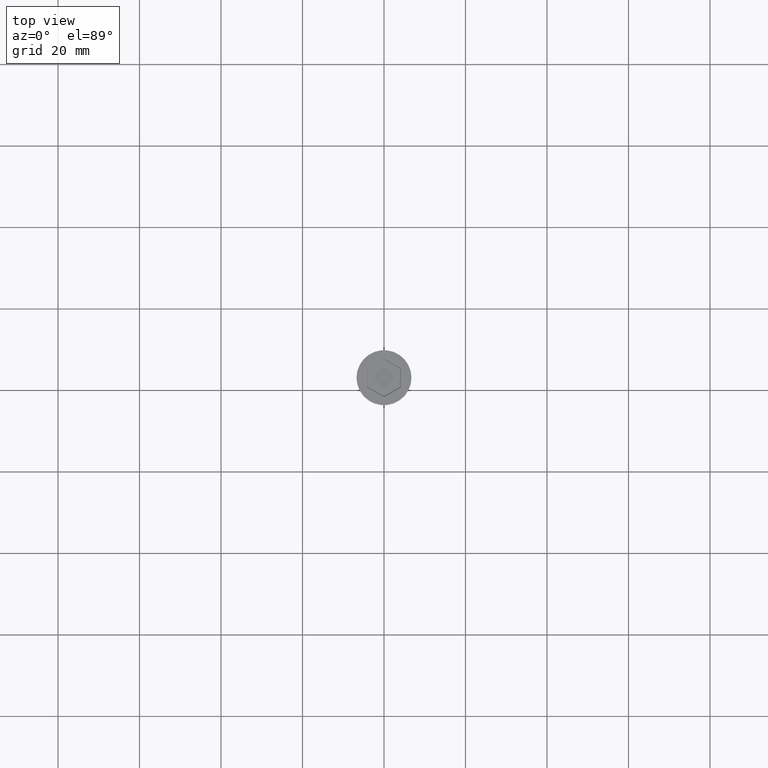
[diagram: clean part render]
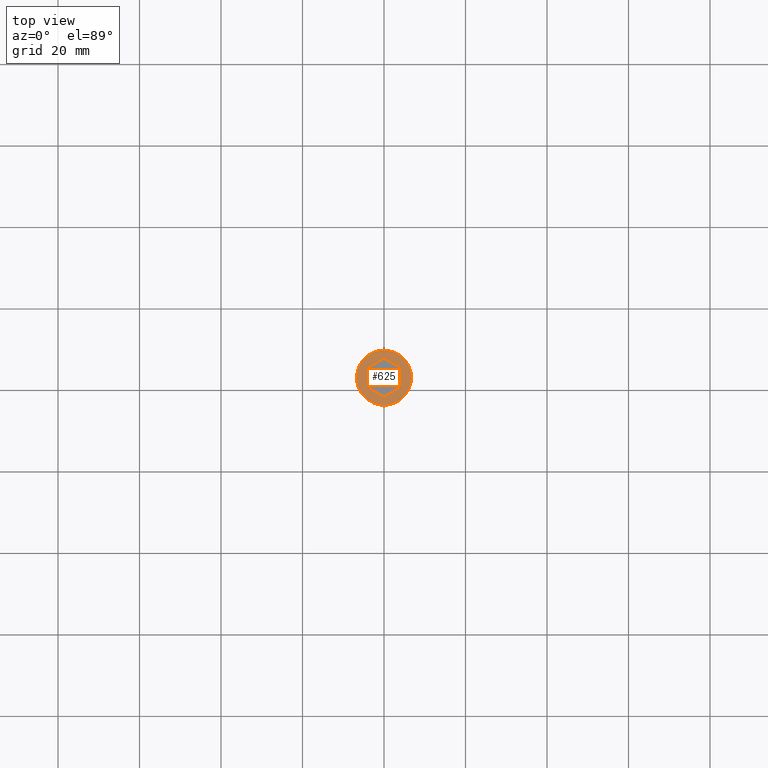
[diagram: same view with one face highlighted and labeled with its STEP entity id]
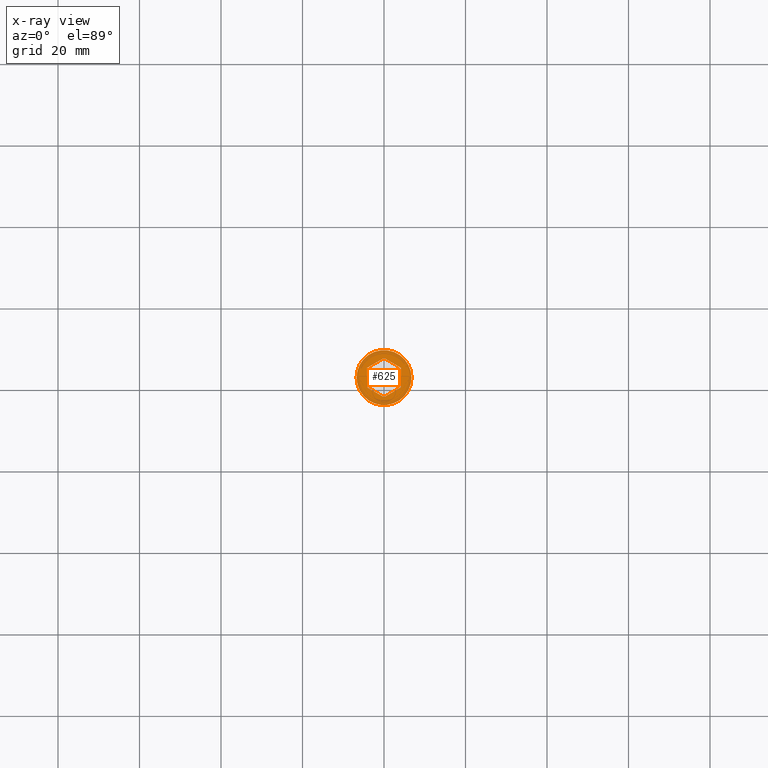
[diagram: x-ray of the same camera — body ghosted, the highlighted face saturated]
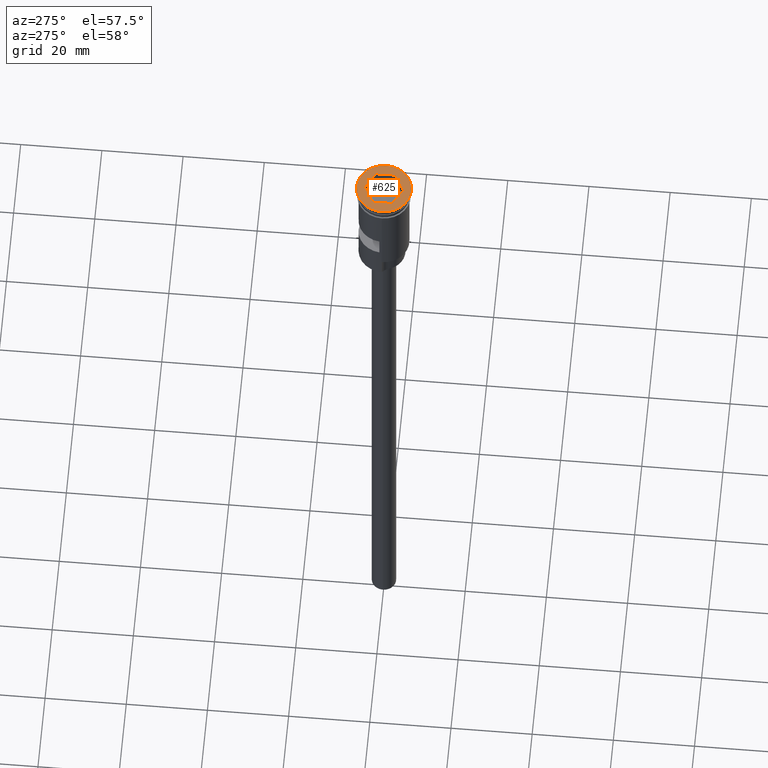
[diagram: same view with one face highlighted and labeled with its STEP entity id]
A machine part, top view. The second image highlights one B-rep face of the part: STEP entity #625.
The next image is the same camera in x-ray: the body ghosted, the highlighted face saturated — about 0% of this face is hidden behind the body in this view.
A second angle (auxiliary view) of the same face is appended — the face is thin or edge-on in the first view.
In plain terms, the highlighted planar face has unit normal (0, -0, 1).
Its self-contained STEP definition (entity closure, byte-faithful):
#25 = CARTESIAN_POINT ( 'NONE',  ( 4.150000000000019895, -2.396003617136961417, 0.000000000000000000 ) ) ;
#50 = CARTESIAN_POINT ( 'NONE',  ( -4.050000000000011369, -2.453738644055928564, 0.000000000000000000 ) ) ;
#61 = VECTOR ( 'NONE', #99, 1000.000000000000000 ) ;
#99 = DIRECTION ( 'NONE',  ( 0.000000000000000000, 1.000000000000000000, 0.000000000000000000 ) ) ;
#103 = VERTEX_POINT ( 'NONE', #25 ) ;
#117 = DIRECTION ( 'NONE',  ( -0.8660254037844387076, -0.4999999999999998890, 0.000000000000000000 ) ) ;
#134 = VECTOR ( 'NONE', #799, 1000.000000000000000 ) ;
#136 = AXIS2_PLACEMENT_3D ( 'NONE', #1354, #371, #1604 ) ;
#140 = DIRECTION ( 'NONE',  ( 0.8660254037844385966, 0.4999999999999999445, 0.000000000000000000 ) ) ;
#166 = VECTOR ( 'NONE', #117, 1000.000000000000000 ) ;
#197 = CARTESIAN_POINT ( 'NONE',  ( 0.000000000000000000, 0.000000000000000000, 0.000000000000000000 ) ) ;
#199 = CARTESIAN_POINT ( 'NONE',  ( 6.750000000000000000, 0.000000000000000000, 0.000000000000000000 ) ) ;
#201 = ORIENTED_EDGE ( 'NONE', *, *, #1225, .T. ) ;
#217 = LINE ( 'NONE', #1583, #61 ) ;
#238 = VERTEX_POINT ( 'NONE', #199 ) ;
#286 = CIRCLE ( 'NONE', #136, 6.750000000000000000 ) ;
#308 = ORIENTED_EDGE ( 'NONE', *, *, #1543, .T. ) ;
#320 = ORIENTED_EDGE ( 'NONE', *, *, #617, .T. ) ;
#371 = DIRECTION ( 'NONE',  ( -0.000000000000000000, -0.000000000000000000, 1.000000000000000000 ) ) ;
#384 = EDGE_CURVE ( 'NONE', #1283, #238, #390, .T. ) ;
#390 = CIRCLE ( 'NONE', #465, 6.750000000000000000 ) ;
#417 = DIRECTION ( 'NONE',  ( 1.000000000000000000, 0.000000000000000000, 0.000000000000000000 ) ) ;
#454 = FACE_BOUND ( 'NONE', #890, .T. ) ;
#462 = LINE ( 'NONE', #1569, #134 ) ;
#465 = AXIS2_PLACEMENT_3D ( 'NONE', #529, #997, #417 ) ;
#481 = EDGE_CURVE ( 'NONE', #1032, #1470, #1392, .T. ) ;
#503 = DIRECTION ( 'NONE',  ( 0.8660254037844387076, -0.4999999999999998335, 0.000000000000000000 ) ) ;
#529 = CARTESIAN_POINT ( 'NONE',  ( 0.000000000000000000, 0.000000000000000000, 0.000000000000000000 ) ) ;
#566 = EDGE_LOOP ( 'NONE', ( #201, #1530 ) ) ;
#617 = EDGE_CURVE ( 'NONE', #1470, #103, #462, .T. ) ;
#625 = ADVANCED_FACE ( 'NONE', ( #454, #1048 ), #941, .T. ) ;
#678 = VERTEX_POINT ( 'NONE', #1206 ) ;
#687 = DIRECTION ( 'NONE',  ( 0.000000000000000000, -0.000000000000000000, 1.000000000000000000 ) ) ;
#701 = VERTEX_POINT ( 'NONE', #1229 ) ;
#713 = VERTEX_POINT ( 'NONE', #1458 ) ;
#725 = AXIS2_PLACEMENT_3D ( 'NONE', #197, #687, #1440 ) ;
#756 = CARTESIAN_POINT ( 'NONE',  ( -6.750000000000000000, 8.266365894244634333E-16, 0.000000000000000000 ) ) ;
#760 = ORIENTED_EDGE ( 'NONE', *, *, #1182, .T. ) ;
#799 = DIRECTION ( 'NONE',  ( -3.803328098068756548E-16, -1.000000000000000000, 0.000000000000000000 ) ) ;
#853 = VECTOR ( 'NONE', #140, 1000.000000000000114 ) ;
#858 = CARTESIAN_POINT ( 'NONE',  ( 0.1000000000000099976, -4.734272207354950801, 0.000000000000000000 ) ) ;
#890 = EDGE_LOOP ( 'NONE', ( #1249, #308, #1565, #1579, #320, #760 ) ) ;
#929 = VECTOR ( 'NONE', #1532, 999.9999999999998863 ) ;
#941 = PLANE ( 'NONE',  #725 ) ;
#985 = CARTESIAN_POINT ( 'NONE',  ( 4.150000000000021672, 2.396003617136959640, 0.000000000000000000 ) ) ;
#997 = DIRECTION ( 'NONE',  ( -0.000000000000000000, -0.000000000000000000, 1.000000000000000000 ) ) ;
#1032 = VERTEX_POINT ( 'NONE', #1053 ) ;
#1048 = FACE_OUTER_BOUND ( 'NONE', #566, .T. ) ;
#1053 = CARTESIAN_POINT ( 'NONE',  ( -1.044795037522899886E-15, 4.792007234273919281, 0.000000000000000000 ) ) ;
#1065 = VECTOR ( 'NONE', #503, 1000.000000000000000 ) ;
#1098 = CARTESIAN_POINT ( 'NONE',  ( -0.1000000000000110661, 4.734272207354949913, 0.000000000000000000 ) ) ;
#1182 = EDGE_CURVE ( 'NONE', #103, #678, #1456, .T. ) ;
#1206 = CARTESIAN_POINT ( 'NONE',  ( -4.614111465591404171E-16, -4.792007234273920169, 0.000000000000000000 ) ) ;
#1225 = EDGE_CURVE ( 'NONE', #238, #1283, #286, .T. ) ;
#1229 = CARTESIAN_POINT ( 'NONE',  ( -4.150000000000021672, 2.396003617136960084, 0.000000000000000000 ) ) ;
#1249 = ORIENTED_EDGE ( 'NONE', *, *, #1393, .T. ) ;
#1258 = LINE ( 'NONE', #1098, #853 ) ;
#1283 = VERTEX_POINT ( 'NONE', #756 ) ;
#1284 = LINE ( 'NONE', #50, #929 ) ;
#1354 = CARTESIAN_POINT ( 'NONE',  ( 0.000000000000000000, 0.000000000000000000, 0.000000000000000000 ) ) ;
#1377 = CARTESIAN_POINT ( 'NONE',  ( 4.050000000000011369, 2.453738644055928564, 0.000000000000000000 ) ) ;
#1392 = LINE ( 'NONE', #1377, #1065 ) ;
#1393 = EDGE_CURVE ( 'NONE', #678, #713, #1284, .T. ) ;
#1433 = EDGE_CURVE ( 'NONE', #701, #1032, #1258, .T. ) ;
#1440 = DIRECTION ( 'NONE',  ( 1.000000000000000000, 0.000000000000000000, 0.000000000000000000 ) ) ;
#1456 = LINE ( 'NONE', #858, #166 ) ;
#1458 = CARTESIAN_POINT ( 'NONE',  ( -4.150000000000021672, -2.396003617136959640, 0.000000000000000000 ) ) ;
#1470 = VERTEX_POINT ( 'NONE', #985 ) ;
#1530 = ORIENTED_EDGE ( 'NONE', *, *, #384, .T. ) ;
#1532 = DIRECTION ( 'NONE',  ( -0.8660254037844385966, 0.5000000000000002220, 0.000000000000000000 ) ) ;
#1543 = EDGE_CURVE ( 'NONE', #713, #701, #217, .T. ) ;
#1565 = ORIENTED_EDGE ( 'NONE', *, *, #1433, .T. ) ;
#1569 = CARTESIAN_POINT ( 'NONE',  ( 4.150000000000019895, -2.280533563299022681, 0.000000000000000000 ) ) ;
#1579 = ORIENTED_EDGE ( 'NONE', *, *, #481, .T. ) ;
#1583 = CARTESIAN_POINT ( 'NONE',  ( -4.150000000000021672, 2.280533563299020905, 0.000000000000000000 ) ) ;
#1604 = DIRECTION ( 'NONE',  ( 1.000000000000000000, 0.000000000000000000, 0.000000000000000000 ) ) ;